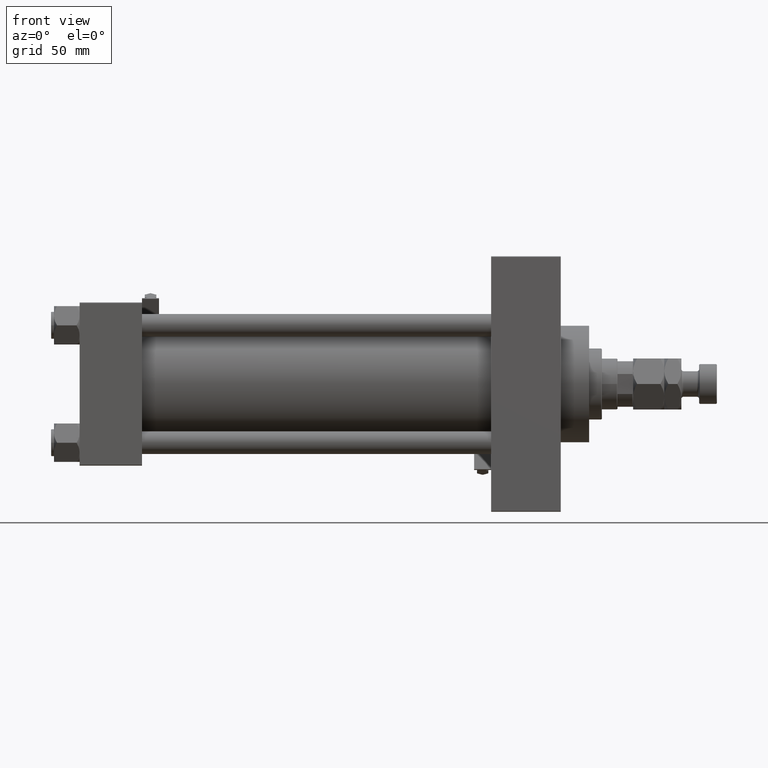
[diagram: clean part render]
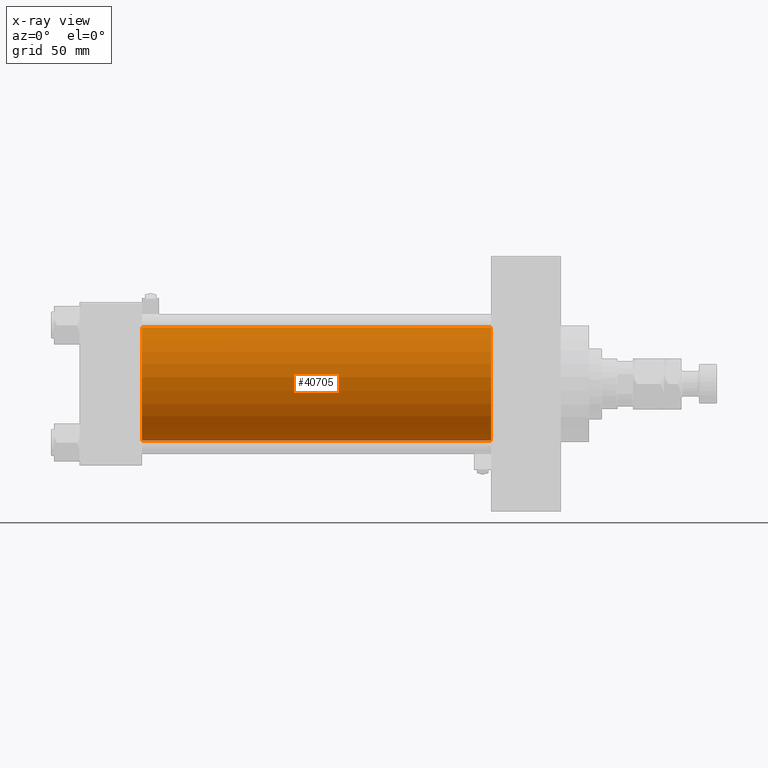
[diagram: x-ray — body ghosted, one internal face saturated and labeled with its STEP entity id]
A machine part, front view, then the same camera in x-ray: the body is ghosted and one INTERNAL B-rep face — a face not visible from any outside direction — is saturated and labeled: STEP entity #40705.
In plain terms, the highlighted cylindrical surface (partial cylindrical patch) has radius 40 mm, axis along (-1, -0, -0).
Its self-contained STEP definition (entity closure, byte-faithful):
#201 = CARTESIAN_POINT ( 'NONE',  ( 290.0000000000000000, -2.602085213965210642E-15, 40.00000000000000000 ) ) ;
#1885 = VERTEX_POINT ( 'NONE', #13264 ) ;
#2136 = AXIS2_PLACEMENT_3D ( 'NONE', #30302, #2523, #45878 ) ;
#2523 = DIRECTION ( 'NONE',  ( 1.000000000000000000, 0.000000000000000000, 0.000000000000000000 ) ) ;
#3505 = DIRECTION ( 'NONE',  ( 0.000000000000000000, 0.000000000000000000, -1.000000000000000000 ) ) ;
#3723 = CIRCLE ( 'NONE', #2136, 40.00000000000000000 ) ;
#6010 = VERTEX_POINT ( 'NONE', #16088 ) ;
#6387 = ORIENTED_EDGE ( 'NONE', *, *, #27351, .T. ) ;
#8443 = DIRECTION ( 'NONE',  ( -1.000000000000000000, -0.000000000000000000, -0.000000000000000000 ) ) ;
#8599 = AXIS2_PLACEMENT_3D ( 'NONE', #30550, #38449, #3505 ) ;
#9331 = EDGE_CURVE ( 'NONE', #37406, #41314, #30597, .T. ) ;
#9974 = ORIENTED_EDGE ( 'NONE', *, *, #47043, .T. ) ;
#11240 = CARTESIAN_POINT ( 'NONE',  ( 290.0000000000000000, 2.296501982624201990E-15, -40.00000000000000000 ) ) ;
#11415 = EDGE_CURVE ( 'NONE', #6010, #37406, #19581, .T. ) ;
#13264 = CARTESIAN_POINT ( 'NONE',  ( 290.0000000000000000, 2.296501982624201990E-15, -40.00000000000000000 ) ) ;
#15748 = DIRECTION ( 'NONE',  ( -1.000000000000000000, -0.000000000000000000, -0.000000000000000000 ) ) ;
#15834 = FACE_OUTER_BOUND ( 'NONE', #42560, .T. ) ;
#16088 = CARTESIAN_POINT ( 'NONE',  ( 290.0000000000000000, -2.602085213965210642E-15, 40.00000000000000000 ) ) ;
#19554 = CARTESIAN_POINT ( 'NONE',  ( 44.00000000000000000, 2.296501982624201990E-15, -40.00000000000000000 ) ) ;
#19581 = LINE ( 'NONE', #201, #50210 ) ;
#26791 = DIRECTION ( 'NONE',  ( -1.000000000000000000, -0.000000000000000000, -0.000000000000000000 ) ) ;
#26813 = DIRECTION ( 'NONE',  ( 0.000000000000000000, 0.000000000000000000, 1.000000000000000000 ) ) ;
#27351 = EDGE_CURVE ( 'NONE', #6010, #1885, #3723, .T. ) ;
#30302 = CARTESIAN_POINT ( 'NONE',  ( 290.0000000000000000, -2.602085213965210642E-15, 0.000000000000000000 ) ) ;
#30550 = CARTESIAN_POINT ( 'NONE',  ( 44.00000000000000000, -2.602085213965210642E-15, 0.000000000000000000 ) ) ;
#30597 = CIRCLE ( 'NONE', #8599, 40.00000000000000000 ) ;
#30629 = LINE ( 'NONE', #11240, #31643 ) ;
#31409 = CARTESIAN_POINT ( 'NONE',  ( 290.0000000000000000, -2.602085213965210642E-15, 0.000000000000000000 ) ) ;
#31643 = VECTOR ( 'NONE', #26791, 1000.000000000000000 ) ;
#35236 = CYLINDRICAL_SURFACE ( 'NONE', #49722, 40.00000000000000000 ) ;
#35879 = ORIENTED_EDGE ( 'NONE', *, *, #9331, .F. ) ;
#37406 = VERTEX_POINT ( 'NONE', #43103 ) ;
#38449 = DIRECTION ( 'NONE',  ( 1.000000000000000000, 0.000000000000000000, 0.000000000000000000 ) ) ;
#40705 = ADVANCED_FACE ( 'NONE', ( #15834 ), #35236, .F. ) ;
#41314 = VERTEX_POINT ( 'NONE', #19554 ) ;
#42560 = EDGE_LOOP ( 'NONE', ( #6387, #9974, #35879, #43536 ) ) ;
#43103 = CARTESIAN_POINT ( 'NONE',  ( 44.00000000000000000, -2.602085213965210642E-15, 40.00000000000000000 ) ) ;
#43536 = ORIENTED_EDGE ( 'NONE', *, *, #11415, .F. ) ;
#45878 = DIRECTION ( 'NONE',  ( 0.000000000000000000, 0.000000000000000000, -1.000000000000000000 ) ) ;
#47043 = EDGE_CURVE ( 'NONE', #1885, #41314, #30629, .T. ) ;
#49722 = AXIS2_PLACEMENT_3D ( 'NONE', #31409, #8443, #26813 ) ;
#50210 = VECTOR ( 'NONE', #15748, 1000.000000000000000 ) ;